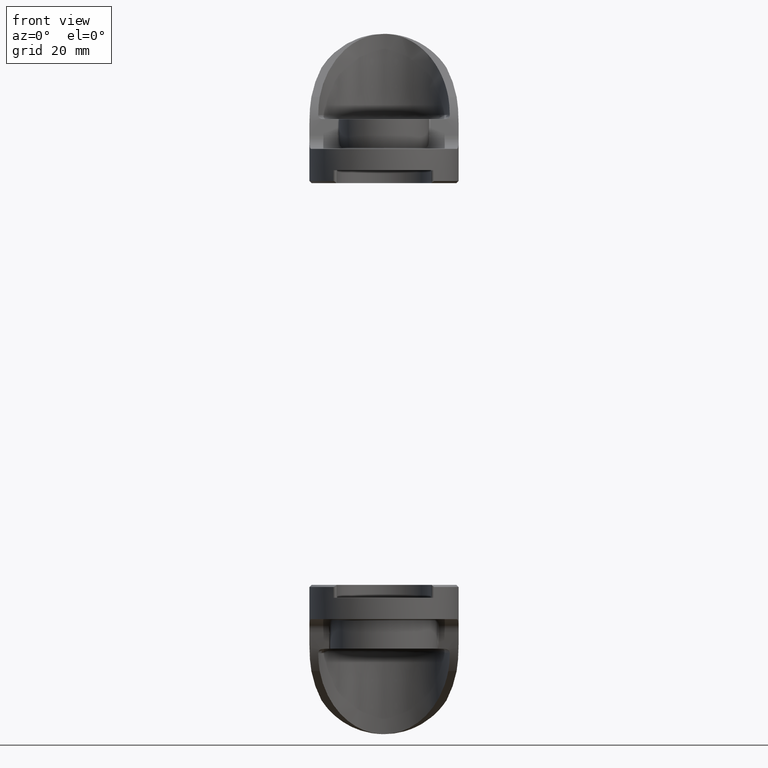
[diagram: clean part render]
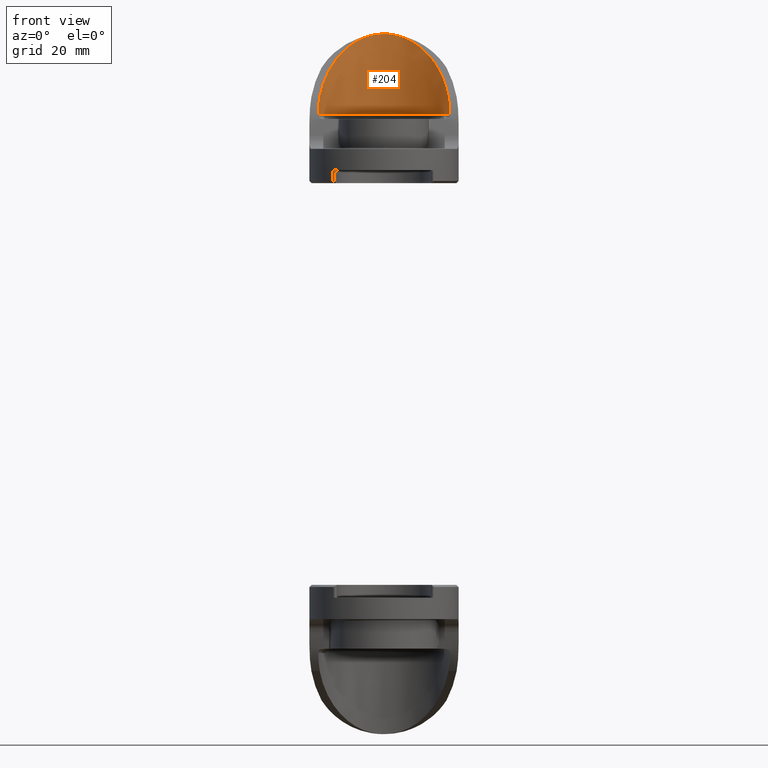
[diagram: same view with one face highlighted and labeled with its STEP entity id]
A machine part, front view. The second image highlights one B-rep face of the part: STEP entity #204.
In plain terms, the highlighted conical surface has half-angle 1.5 deg.
Its self-contained STEP definition (entity closure, byte-faithful):
#35 = CARTESIAN_POINT ( 'NONE',  ( 0.0000000000000000000, 0.0000000000000000000, 0.5899999999999999700 ) ) ;
#152 = AXIS2_PLACEMENT_3D ( 'NONE', #851, #2335, #2345 ) ;
#204 = ADVANCED_FACE ( 'NONE', ( #619 ), #474, .F. ) ;
#211 = ORIENTED_EDGE ( 'NONE', *, *, #1405, .T. ) ;
#296 = CARTESIAN_POINT ( 'NONE',  ( 0.6043913102290821000, 0.08461272919176801600, 0.6872842646186497800 ) ) ;
#396 = CARTESIAN_POINT ( 'NONE',  ( -3.181548453260995900E-016, 0.6280559484318117800, 1.375000000000000000 ) ) ;
#474 = CONICAL_SURFACE ( 'NONE', #631, 0.6075000000000000400, 0.02617993877991500000 ) ;
#503 = CARTESIAN_POINT ( 'NONE',  ( 0.6054717680338063100, 0.06946386272923291100, 0.6586660310556891100 ) ) ;
#526 = CARTESIAN_POINT ( 'NONE',  ( -0.6059248776597476700, 0.05613960399832979000, 0.6289529220676850500 ) ) ;
#563 = CARTESIAN_POINT ( 'NONE',  ( -0.6059248776597476700, 0.05613960399832979000, 0.6289529220676850500 ) ) ;
#591 = ORIENTED_EDGE ( 'NONE', *, *, #1200, .T. ) ;
#619 = FACE_OUTER_BOUND ( 'NONE', #2790, .T. ) ;
#631 = AXIS2_PLACEMENT_3D ( 'NONE', #35, #903, #1569 ) ;
#708 = CARTESIAN_POINT ( 'NONE',  ( -0.5922266072851412000, 0.1576226675505282300, 0.7940632791002504300 ) ) ;
#851 = CARTESIAN_POINT ( 'NONE',  ( 0.0000000000000000000, 0.0000000000000000000, 0.6289529220676850500 ) ) ;
#903 = DIRECTION ( 'NONE',  ( -0.0000000000000000000, -0.0000000000000000000, 1.000000000000000000 ) ) ;
#961 = CARTESIAN_POINT ( 'NONE',  ( 0.5922266072851412000, 0.1576226675505283400, 0.7940632791002503200 ) ) ;
#981 = CIRCLE ( 'NONE', #152, 0.6085200181621552900 ) ;
#1053 = B_SPLINE_CURVE_WITH_KNOTS ( 'NONE', 3,
 ( #2263, #503, #296, #1424, #1243, #1981 ),
 .UNSPECIFIED., .F., .F.,
 ( 4, 2, 4 ),
 ( 0.001061007478908511000, 0.003527335939951852000, 0.005993664400995192900 ),
 .UNSPECIFIED. ) ;
#1093 = CARTESIAN_POINT ( 'NONE',  ( -3.181548453260995900E-016, 0.6280559484318117800, 1.375000000000000000 ) ) ;
#1120 = CARTESIAN_POINT ( 'NONE',  ( -0.6001486546630754300, 0.1184513922927029300, 0.7423368446156117800 ) ) ;
#1150 = CARTESIAN_POINT ( 'NONE',  ( -0.2946504076207142100, 0.6280559484318118900, 1.375000000000000000 ) ) ;
#1160 = CARTESIAN_POINT ( 'NONE',  ( 0.5254152757960796100, 0.4447486253354593400, 1.148634307936263300 ) ) ;
#1179 = ORIENTED_EDGE ( 'NONE', *, *, #2352, .T. ) ;
#1181 = EDGE_CURVE ( 'NONE', #1768, #2201, #2142, .T. ) ;
#1200 = EDGE_CURVE ( 'NONE', #2787, #1768, #1735, .T. ) ;
#1234 = CARTESIAN_POINT ( 'NONE',  ( -0.5969923349077549400, 0.1371416491710472400, 0.7687713277404869500 ) ) ;
#1243 = CARTESIAN_POINT ( 'NONE',  ( 0.5969923349077550500, 0.1371416491710471800, 0.7687713277404871800 ) ) ;
#1315 = CARTESIAN_POINT ( 'NONE',  ( -0.5254152757960795000, 0.4447486253354592200, 1.148634307936263300 ) ) ;
#1317 = ORIENTED_EDGE ( 'NONE', *, *, #2754, .T. ) ;
#1347 = ORIENTED_EDGE ( 'NONE', *, *, #1181, .T. ) ;
#1405 = EDGE_CURVE ( 'NONE', #2501, #2787, #2500, .T. ) ;
#1424 = CARTESIAN_POINT ( 'NONE',  ( 0.6001486546630753200, 0.1184513922927029800, 0.7423368446156114500 ) ) ;
#1538 = CARTESIAN_POINT ( 'NONE',  ( -0.6043913102290821000, 0.08461272919176789100, 0.6872842646186496700 ) ) ;
#1569 = DIRECTION ( 'NONE',  ( 1.000000000000000000, 0.0000000000000000000, 0.0000000000000000000 ) ) ;
#1673 = CARTESIAN_POINT ( 'NONE',  ( -3.181548453260995900E-016, 0.6280559484318117800, 1.375000000000000000 ) ) ;
#1735 =( BOUNDED_CURVE ( )  B_SPLINE_CURVE ( 3, ( #1093, #1150, #1315, #2246 ),
 .UNSPECIFIED., .F., .F. ) 
 B_SPLINE_CURVE_WITH_KNOTS ( ( 4, 4 ),
 ( 5.232254408079431100E-016, 1.342059123581889500 ),
 .UNSPECIFIED. ) 
 CURVE ( )  GEOMETRIC_REPRESENTATION_ITEM ( )  RATIONAL_B_SPLINE_CURVE ( ( 1.000000000000000000, 0.8554546047495837900, 0.8554546047495837900, 1.000000000000000000 ) ) 
 REPRESENTATION_ITEM ( '' )  );
#1768 = VERTEX_POINT ( 'NONE', #2464 ) ;
#1786 = CARTESIAN_POINT ( 'NONE',  ( 0.2946504076207137100, 0.6280559484318123400, 1.375000000000000400 ) ) ;
#1979 = CARTESIAN_POINT ( 'NONE',  ( -0.6054717680338063100, 0.06946386272923289800, 0.6586660310556891100 ) ) ;
#1981 = CARTESIAN_POINT ( 'NONE',  ( 0.5922266072851412000, 0.1576226675505283400, 0.7940632791002503200 ) ) ;
#1984 = VERTEX_POINT ( 'NONE', #2075 ) ;
#2075 = CARTESIAN_POINT ( 'NONE',  ( 0.6059248776597476700, 0.05613960399832980400, 0.6289529220676850500 ) ) ;
#2142 = B_SPLINE_CURVE_WITH_KNOTS ( 'NONE', 3,
 ( #708, #1234, #1120, #1538, #1979, #526 ),
 .UNSPECIFIED., .F., .F.,
 ( 4, 2, 4 ),
 ( 2.559444080571602200E-007, 0.002466584405451399000, 0.004932912866494740800 ),
 .UNSPECIFIED. ) ;
#2201 = VERTEX_POINT ( 'NONE', #563 ) ;
#2246 = CARTESIAN_POINT ( 'NONE',  ( -0.5922266072851412000, 0.1576226675505282300, 0.7940632791002504300 ) ) ;
#2263 = CARTESIAN_POINT ( 'NONE',  ( 0.6059248776597476700, 0.05613960399832980400, 0.6289529220676850500 ) ) ;
#2335 = DIRECTION ( 'NONE',  ( 0.0000000000000000000, 0.0000000000000000000, -1.000000000000000000 ) ) ;
#2345 = DIRECTION ( 'NONE',  ( 1.000000000000000000, 0.0000000000000000000, 0.0000000000000000000 ) ) ;
#2352 = EDGE_CURVE ( 'NONE', #2201, #1984, #981, .T. ) ;
#2401 = CARTESIAN_POINT ( 'NONE',  ( 0.5922266072851412000, 0.1576226675505283400, 0.7940632791002503200 ) ) ;
#2464 = CARTESIAN_POINT ( 'NONE',  ( -0.5922266072851412000, 0.1576226675505282300, 0.7940632791002504300 ) ) ;
#2500 =( BOUNDED_CURVE ( )  B_SPLINE_CURVE ( 3, ( #961, #1160, #1786, #1673 ),
 .UNSPECIFIED., .F., .F. ) 
 B_SPLINE_CURVE_WITH_KNOTS ( ( 4, 4 ),
 ( 4.941126183597696700, 6.283185307179587100 ),
 .UNSPECIFIED. ) 
 CURVE ( )  GEOMETRIC_REPRESENTATION_ITEM ( )  RATIONAL_B_SPLINE_CURVE ( ( 1.000000000000000000, 0.8554546047495834600, 0.8554546047495834600, 1.000000000000000000 ) ) 
 REPRESENTATION_ITEM ( '' )  );
#2501 = VERTEX_POINT ( 'NONE', #2401 ) ;
#2754 = EDGE_CURVE ( 'NONE', #1984, #2501, #1053, .T. ) ;
#2787 = VERTEX_POINT ( 'NONE', #396 ) ;
#2790 = EDGE_LOOP ( 'NONE', ( #1347, #1179, #1317, #211, #591 ) ) ;